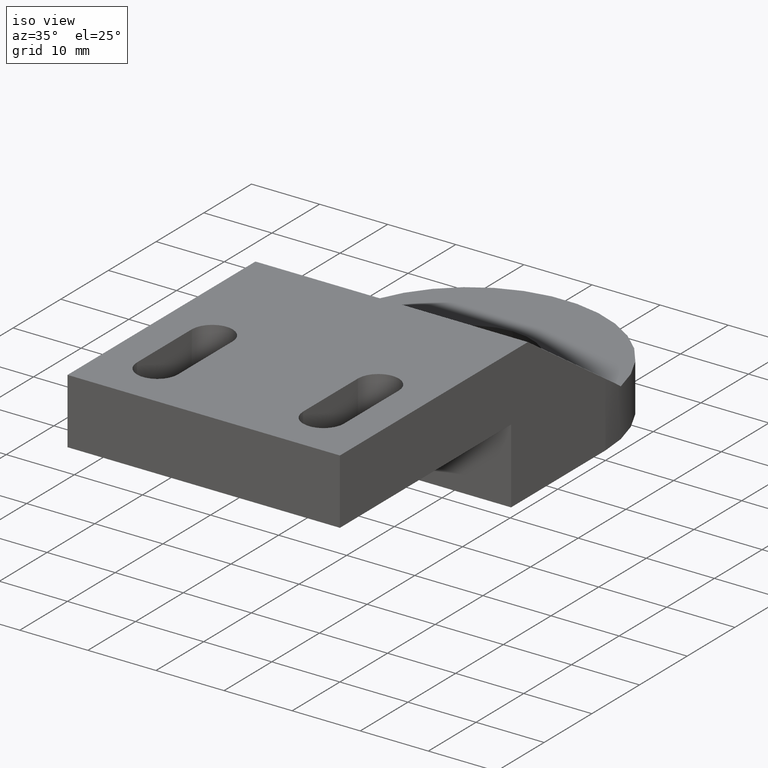
[diagram: clean part render]
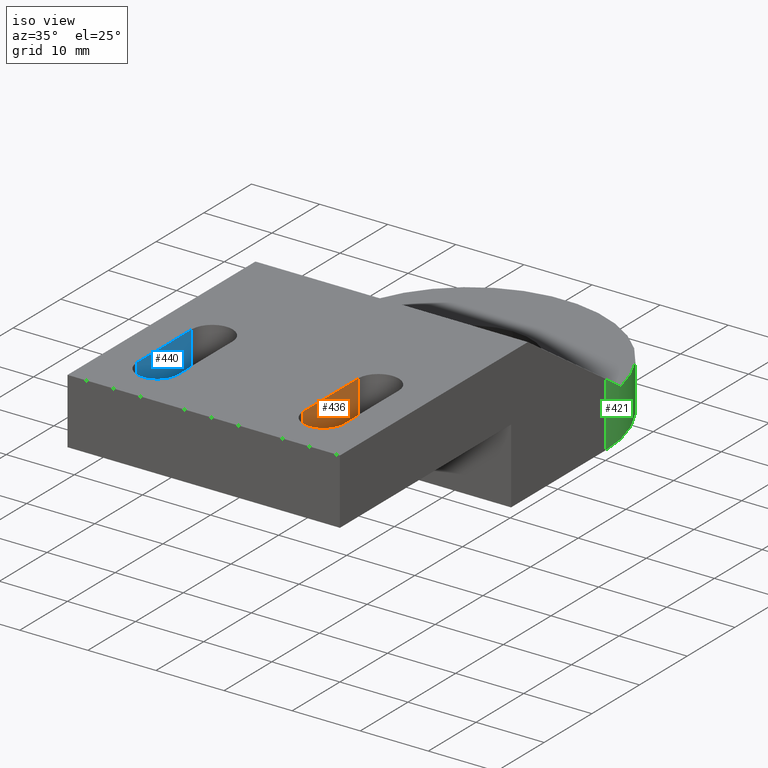
[diagram: same view with three faces highlighted in distinct colors, each labeled with its STEP entity id]
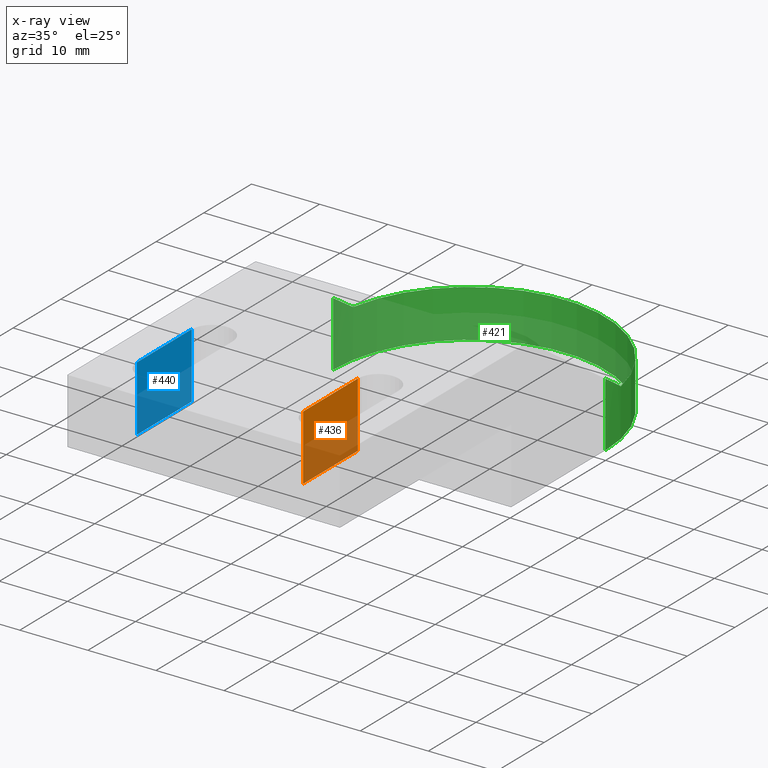
[diagram: x-ray of the same camera — body ghosted, the three highlighted faces saturated]
A machine part, iso view with three faces highlighted in distinct colors.
The next image is the same camera in x-ray (body ghosted, the three faces saturated) — at least one of them is partly hidden behind the body in this view.
Their STEP definitions:

[orange] entity #436 — the highlighted planar face has unit normal (1, 0, 0).
#58=FACE_OUTER_BOUND('',#86,.T.);
#86=EDGE_LOOP('',(#383,#384,#385,#386));
#108=LINE('',#664,#154);
#115=LINE('',#690,#161);
#130=LINE('',#726,#176);
#132=LINE('',#730,#178);
#154=VECTOR('',#536,11.4999999999827);
#161=VECTOR('',#561,11.4999999999827);
#176=VECTOR('',#596,9.59999999996126);
#178=VECTOR('',#602,9.59999999996126);
#199=VERTEX_POINT('',#660);
#201=VERTEX_POINT('',#663);
#208=VERTEX_POINT('',#683);
#211=VERTEX_POINT('',#688);
#245=EDGE_CURVE('',#201,#199,#108,.T.);
#258=EDGE_CURVE('',#208,#211,#115,.T.);
#276=EDGE_CURVE('',#199,#208,#130,.T.);
#278=EDGE_CURVE('',#201,#211,#132,.T.);
#383=ORIENTED_EDGE('',*,*,#276,.T.);
#384=ORIENTED_EDGE('',*,*,#258,.T.);
#385=ORIENTED_EDGE('',*,*,#278,.F.);
#386=ORIENTED_EDGE('',*,*,#245,.T.);
#416=PLANE('',#492);
#436=ADVANCED_FACE('',(#58),#416,.T.);
#492=AXIS2_PLACEMENT_3D('',#731,#603,#604);
#536=DIRECTION('',(0.,-1.,0.));
#561=DIRECTION('',(0.,1.,0.));
#596=DIRECTION('',(0.,0.,-1.));
#602=DIRECTION('',(0.,0.,-1.));
#603=DIRECTION('center_axis',(1.,0.,0.));
#604=DIRECTION('ref_axis',(0.,0.,-1.));
#660=CARTESIAN_POINT('',(9.19999999996343,-47.9999999998081,20.5999999999172));
#663=CARTESIAN_POINT('',(9.19999999996343,-36.4999999998254,20.5999999999172));
#664=CARTESIAN_POINT('',(9.19999999996343,-36.4999999998254,20.5999999999172));
#683=CARTESIAN_POINT('',(9.19999999996343,-47.9999999998081,10.999999999956));
#688=CARTESIAN_POINT('',(9.19999999996343,-36.4999999998254,10.999999999956));
#690=CARTESIAN_POINT('',(9.19999999996343,-47.9999999998081,10.999999999956));
#726=CARTESIAN_POINT('',(9.19999999996343,-47.9999999998081,20.5999999999172));
#730=CARTESIAN_POINT('',(9.19999999996343,-36.4999999998254,20.5999999999172));
#731=CARTESIAN_POINT('Origin',(9.19999999996343,-36.4999999998254,20.5999999999172));

[blue] entity #440 — the highlighted planar face has unit normal (1, 0, 0).
#62=FACE_OUTER_BOUND('',#90,.T.);
#90=EDGE_LOOP('',(#399,#400,#401,#402));
#110=LINE('',#672,#156);
#117=LINE('',#698,#163);
#134=LINE('',#734,#180);
#136=LINE('',#738,#182);
#156=VECTOR('',#542,11.4999999999827);
#163=VECTOR('',#567,11.4999999999827);
#180=VECTOR('',#608,9.59999999996126);
#182=VECTOR('',#614,9.59999999996126);
#203=VERTEX_POINT('',#668);
#205=VERTEX_POINT('',#671);
#212=VERTEX_POINT('',#691);
#215=VERTEX_POINT('',#696);
#249=EDGE_CURVE('',#205,#203,#110,.T.);
#262=EDGE_CURVE('',#212,#215,#117,.T.);
#280=EDGE_CURVE('',#203,#212,#134,.T.);
#282=EDGE_CURVE('',#205,#215,#136,.T.);
#399=ORIENTED_EDGE('',*,*,#280,.T.);
#400=ORIENTED_EDGE('',*,*,#262,.T.);
#401=ORIENTED_EDGE('',*,*,#282,.F.);
#402=ORIENTED_EDGE('',*,*,#249,.T.);
#418=PLANE('',#496);
#440=ADVANCED_FACE('',(#62),#418,.T.);
#496=AXIS2_PLACEMENT_3D('',#739,#615,#616);
#542=DIRECTION('',(0.,-1.,0.));
#567=DIRECTION('',(0.,1.,0.));
#608=DIRECTION('',(0.,0.,-1.));
#614=DIRECTION('',(0.,0.,-1.));
#615=DIRECTION('center_axis',(1.,0.,0.));
#616=DIRECTION('ref_axis',(0.,0.,-1.));
#668=CARTESIAN_POINT('',(-15.1999999999389,-47.9999999998081,20.5999999999172));
#671=CARTESIAN_POINT('',(-15.1999999999389,-36.4999999998254,20.5999999999172));
#672=CARTESIAN_POINT('',(-15.1999999999389,-36.4999999998254,20.5999999999172));
#691=CARTESIAN_POINT('',(-15.1999999999389,-47.9999999998081,10.999999999956));
#696=CARTESIAN_POINT('',(-15.1999999999389,-36.4999999998254,10.999999999956));
#698=CARTESIAN_POINT('',(-15.1999999999389,-47.9999999998081,10.999999999956));
#734=CARTESIAN_POINT('',(-15.1999999999389,-47.9999999998081,20.5999999999172));
#738=CARTESIAN_POINT('',(-15.1999999999389,-36.4999999998254,20.5999999999172));
#739=CARTESIAN_POINT('Origin',(-15.1999999999389,-36.4999999998254,20.5999999999172));

[green] entity #421 — the highlighted cylindrical surface (partial cylindrical patch) has radius 20 mm, axis along (0, 0, 1).
#21=ELLIPSE('',#465,24.1859463324328,19.99999999992);
#22=ELLIPSE('',#467,24.1859463324328,19.99999999992);
#23=CIRCLE('',#464,19.99999999992);
#24=CIRCLE('',#466,19.99999999992);
#35=CYLINDRICAL_SURFACE('',#463,19.99999999992);
#43=FACE_OUTER_BOUND('',#65,.T.);
#65=EDGE_LOOP('',(#294,#295,#296,#297,#298,#299));
#96=LINE('',#632,#142);
#101=LINE('',#643,#147);
#142=VECTOR('',#508,9.51599999996129);
#147=VECTOR('',#517,9.51599999996123);
#188=VERTEX_POINT('',#629);
#189=VERTEX_POINT('',#631);
#192=VERTEX_POINT('',#640);
#193=VERTEX_POINT('',#642);
#194=VERTEX_POINT('',#644);
#195=VERTEX_POINT('',#646);
#228=EDGE_CURVE('',#189,#188,#96,.T.);
#233=EDGE_CURVE('',#188,#192,#23,.T.);
#234=EDGE_CURVE('',#193,#192,#101,.T.);
#235=EDGE_CURVE('',#194,#193,#21,.T.);
#236=EDGE_CURVE('',#195,#194,#24,.T.);
#237=EDGE_CURVE('',#189,#195,#22,.T.);
#294=ORIENTED_EDGE('',*,*,#228,.T.);
#295=ORIENTED_EDGE('',*,*,#233,.T.);
#296=ORIENTED_EDGE('',*,*,#234,.F.);
#297=ORIENTED_EDGE('',*,*,#235,.F.);
#298=ORIENTED_EDGE('',*,*,#236,.F.);
#299=ORIENTED_EDGE('',*,*,#237,.F.);
#421=ADVANCED_FACE('',(#43),#35,.T.);
#463=AXIS2_PLACEMENT_3D('',#639,#513,#514);
#464=AXIS2_PLACEMENT_3D('',#641,#515,#516);
#465=AXIS2_PLACEMENT_3D('',#645,#518,#519);
#466=AXIS2_PLACEMENT_3D('',#647,#520,#521);
#467=AXIS2_PLACEMENT_3D('',#648,#522,#523);
#508=DIRECTION('',(0.,0.,-1.));
#513=DIRECTION('center_axis',(0.,0.,1.));
#514=DIRECTION('ref_axis',(1.,0.,0.));
#515=DIRECTION('center_axis',(0.,0.,1.));
#516=DIRECTION('ref_axis',(1.,0.,0.));
#517=DIRECTION('',(0.,0.,-1.));
#518=DIRECTION('center_axis',(0.,0.562310021407283,0.826926502069526));
#519=DIRECTION('ref_axis',(0.,0.826926502069526,-0.562310021407283));
#520=DIRECTION('center_axis',(0.,0.,1.));
#521=DIRECTION('ref_axis',(1.,0.,0.));
#522=DIRECTION('center_axis',(0.,0.562310021407283,0.826926502069526));
#523=DIRECTION('ref_axis',(0.,0.826926502069526,-0.562310021407283));
#629=CARTESIAN_POINT('',(19.99999999992,0.,0.));
#631=CARTESIAN_POINT('',(19.99999999992,0.,9.51599999996129));
#632=CARTESIAN_POINT('',(19.99999999992,0.,9.51599999996129));
#639=CARTESIAN_POINT('Origin',(0.,0.,20.5999999999172));
#640=CARTESIAN_POINT('',(-19.99999999992,0.,0.));
#641=CARTESIAN_POINT('Origin',(0.,0.,0.));
#642=CARTESIAN_POINT('',(-19.99999999992,0.,9.51599999996123));
#643=CARTESIAN_POINT('',(-19.99999999992,0.,9.51599999996123));
#644=CARTESIAN_POINT('',(-19.6547704132336,3.69999999998481,6.99999999997154));
#645=CARTESIAN_POINT('Origin',(0.,0.,9.51599999996129));
#646=CARTESIAN_POINT('',(19.6547704132336,3.69999999998481,6.99999999997154));
#647=CARTESIAN_POINT('Origin',(0.,0.,6.99999999997154));
#648=CARTESIAN_POINT('Origin',(0.,0.,9.51599999996129));